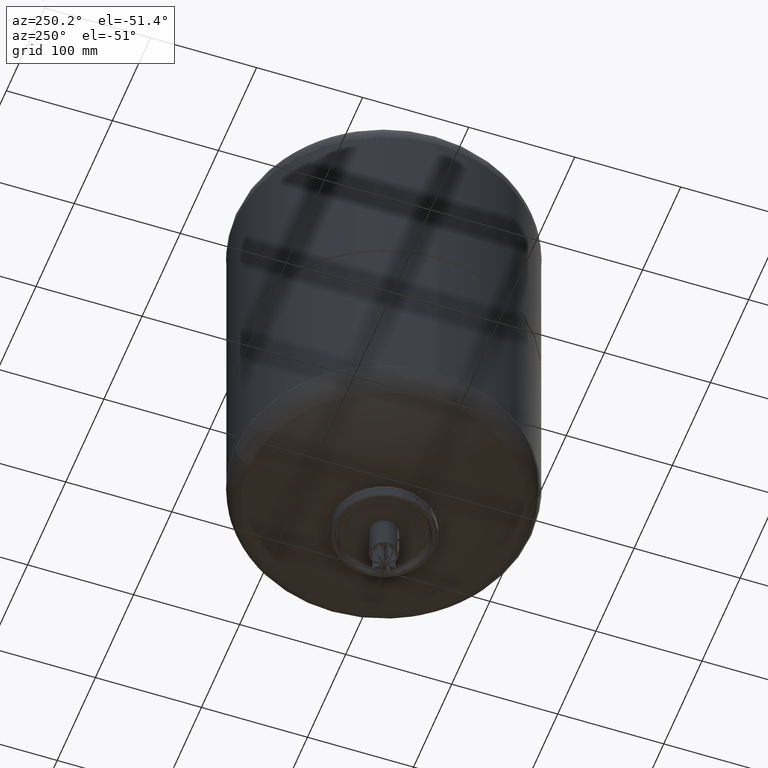
[diagram: clean part render]
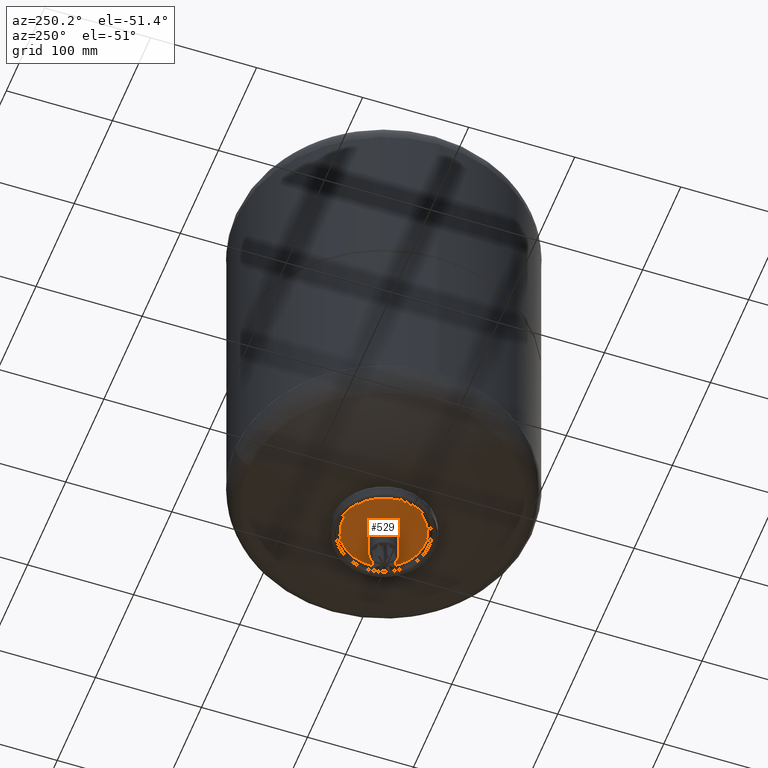
[diagram: same view with one face highlighted and labeled with its STEP entity id]
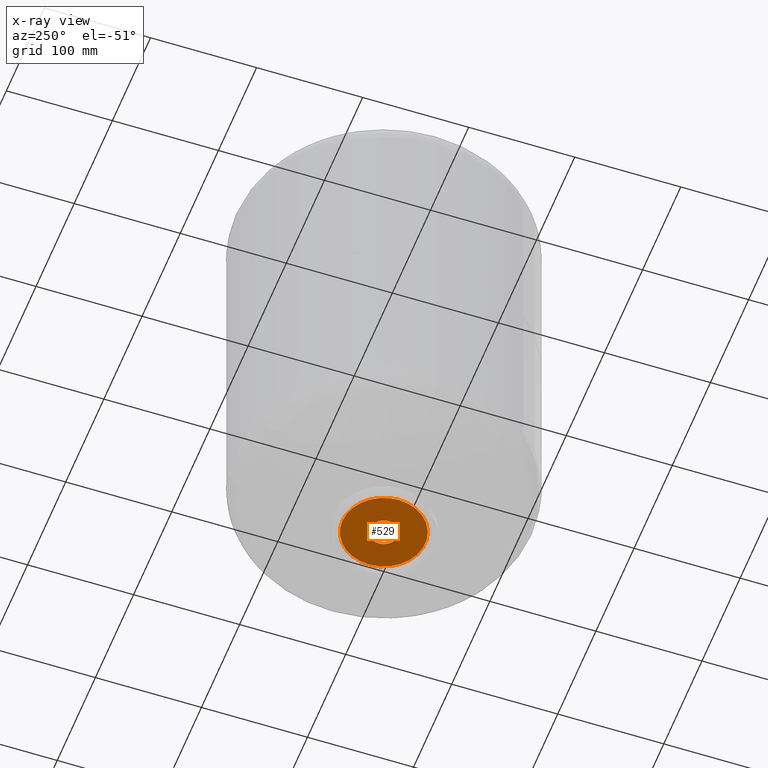
[diagram: x-ray of the same camera — body ghosted, the highlighted face saturated]
A machine part, auxiliary view. The second image highlights one B-rep face of the part: STEP entity #529.
The next image is the same camera in x-ray: the body ghosted, the highlighted face saturated — about 0% of this face is hidden behind the body in this view.
In plain terms, the highlighted planar face has unit normal (0, 0, -1).
Its self-contained STEP definition (entity closure, byte-faithful):
#275=CARTESIAN_POINT('',(13.449999999999999,0.0,45.999999999999986));
#276=VERTEX_POINT('',#275);
#285=CARTESIAN_POINT('',(-13.449999999999999,1.647096E-015,45.999999999999993));
#286=VERTEX_POINT('',#285);
#287=CARTESIAN_POINT('',(0.0,0.0,45.999999999999993));
#288=DIRECTION('',(0.0,0.0,-1.0));
#289=DIRECTION('',(1.0,0.0,0.0));
#290=AXIS2_PLACEMENT_3D('',#287,#288,#289);
#291=CIRCLE('',#290,13.449999999999999);
#292=EDGE_CURVE('',#276,#286,#291,.T.);
#409=CARTESIAN_POINT('',(-39.000000000000007,3.136209E-016,46.0));
#410=VERTEX_POINT('',#409);
#436=CARTESIAN_POINT('',(39.000000000000007,-4.462344E-015,46.0));
#437=VERTEX_POINT('',#436);
#445=CARTESIAN_POINT('',(0.0,39.0,46.0));
#446=VERTEX_POINT('',#445);
#447=CARTESIAN_POINT('',(0.0,0.0,46.0));
#448=DIRECTION('',(0.0,0.0,-1.0));
#449=DIRECTION('',(0.0,1.0,0.0));
#450=AXIS2_PLACEMENT_3D('',#447,#448,#449);
#451=CIRCLE('',#450,39.000000000000007);
#452=EDGE_CURVE('',#446,#437,#451,.T.);
#454=CARTESIAN_POINT('',(0.0,0.0,46.0));
#455=DIRECTION('',(0.0,0.0,-1.0));
#456=DIRECTION('',(0.0,1.0,0.0));
#457=AXIS2_PLACEMENT_3D('',#454,#455,#456);
#458=CIRCLE('',#457,39.000000000000007);
#459=EDGE_CURVE('',#410,#446,#458,.T.);
#503=CARTESIAN_POINT('',(0.0,19.500000000000000,45.999999999999993));
#504=DIRECTION('',(0.0,0.0,-1.0));
#505=DIRECTION('',(-1.0,0.0,0.0));
#506=AXIS2_PLACEMENT_3D('',#503,#504,#505);
#507=PLANE('',#506);
#508=ORIENTED_EDGE('',*,*,#452,.T.);
#509=CARTESIAN_POINT('',(0.0,0.0,46.0));
#510=DIRECTION('',(0.0,0.0,-1.0));
#511=DIRECTION('',(0.0,1.0,0.0));
#512=AXIS2_PLACEMENT_3D('',#509,#510,#511);
#513=CIRCLE('',#512,39.000000000000007);
#514=EDGE_CURVE('',#437,#410,#513,.T.);
#515=ORIENTED_EDGE('',*,*,#514,.T.);
#516=ORIENTED_EDGE('',*,*,#459,.T.);
#517=EDGE_LOOP('',(#508,#515,#516));
#518=FACE_OUTER_BOUND('',#517,.T.);
#519=CARTESIAN_POINT('',(0.0,0.0,45.999999999999993));
#520=DIRECTION('',(0.0,0.0,-1.0));
#521=DIRECTION('',(1.0,0.0,0.0));
#522=AXIS2_PLACEMENT_3D('',#519,#520,#521);
#523=CIRCLE('',#522,13.449999999999999);
#524=EDGE_CURVE('',#286,#276,#523,.T.);
#525=ORIENTED_EDGE('',*,*,#524,.F.);
#526=ORIENTED_EDGE('',*,*,#292,.F.);
#527=EDGE_LOOP('',(#525,#526));
#528=FACE_BOUND('',#527,.T.);
#529=ADVANCED_FACE('',(#518,#528),#507,.T.);